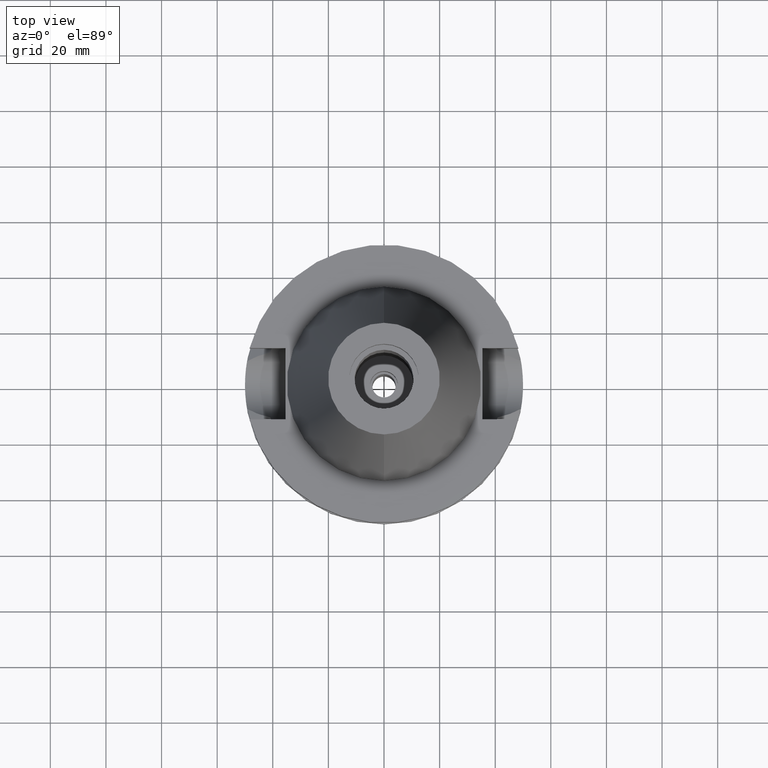
[diagram: clean part render]
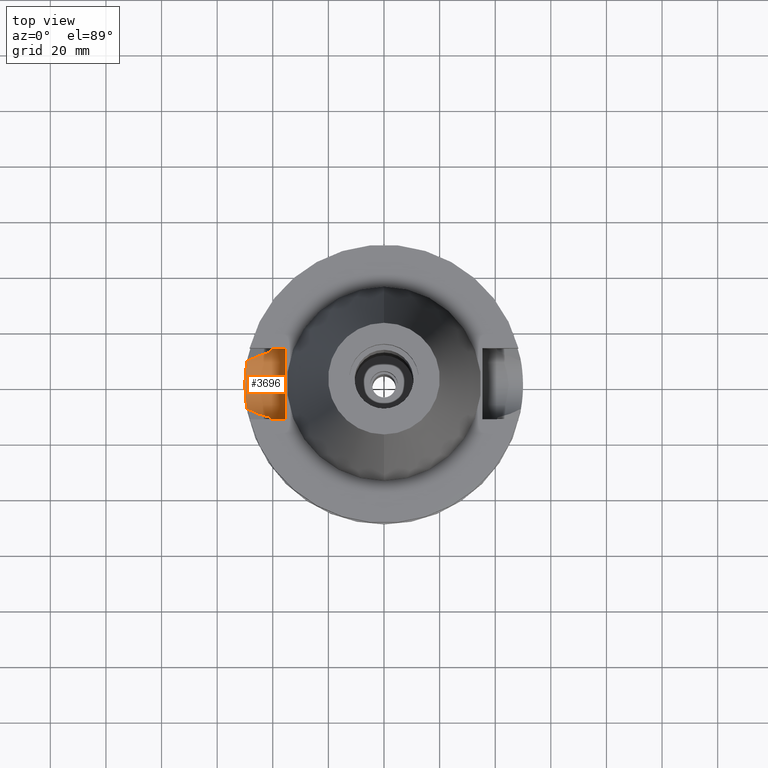
[diagram: same view with one face highlighted and labeled with its STEP entity id]
A machine part, top view. The second image highlights one B-rep face of the part: STEP entity #3696.
In plain terms, the highlighted cylindrical surface (edge-blend (fillet) strip) has radius 12.85 mm, axis along (-1, 0, 0).
Its self-contained STEP definition (entity closure, byte-faithful):
#15 = CARTESIAN_POINT ( 'NONE',  ( -49.26250064874000145, 8.556052234130000045, -30.73730776426999967 ) ) ;
#37 = CARTESIAN_POINT ( 'NONE',  ( -49.48054239204724070, -7.209678475835562317, -31.80600190290413920 ) ) ;
#71 = CARTESIAN_POINT ( 'NONE',  ( -40.51083188481999997, 12.84999999999999964, -21.14999999999999858 ) ) ;
#82 = EDGE_CURVE ( 'NONE', #3013, #531, #466, .T. ) ;
#116 = VERTEX_POINT ( 'NONE', #2906 ) ;
#161 = CARTESIAN_POINT ( 'NONE',  ( -40.51083188481999997, -12.84999999999999964, -21.14999999999999858 ) ) ;
#236 = CARTESIAN_POINT ( 'NONE',  ( -49.99991544254766751, 0.01811622123226228412, -34.00000835048388836 ) ) ;
#250 = CARTESIAN_POINT ( 'NONE',  ( -49.50764152230429715, 6.999347374768817964, -31.92681436916344850 ) ) ;
#267 = CARTESIAN_POINT ( 'NONE',  ( -49.55616206046532568, 6.647337482007169562, -32.14706538255122581 ) ) ;
#268 = CARTESIAN_POINT ( 'NONE',  ( -42.51465299359183092, -11.33892293222904968, -27.26911866689977515 ) ) ;
#305 = CARTESIAN_POINT ( 'NONE',  ( -49.26250064874000145, 8.556052234130000045, -30.73730776426999967 ) ) ;
#318 = CARTESIAN_POINT ( 'NONE',  ( -49.79726298220426628, -4.497969784571679064, -33.18710451702092001 ) ) ;
#320 = CARTESIAN_POINT ( 'NONE',  ( -45.60888228622864915, -10.27858248491968496, -28.86229369423116609 ) ) ;
#340 = CARTESIAN_POINT ( 'NONE',  ( -40.51083188481999997, -12.84999999999999964, -21.14999999999999858 ) ) ;
#360 = CARTESIAN_POINT ( 'NONE',  ( -40.68244087361377126, -12.29668167670598145, -24.88705339701010644 ) ) ;
#377 = CARTESIAN_POINT ( 'NONE',  ( -49.38339985379315067, -7.859960508150862779, -31.35852461822588566 ) ) ;
#379 = CYLINDRICAL_SURFACE ( 'NONE', #1373, 12.85000000000000320 ) ;
#401 = CARTESIAN_POINT ( 'NONE',  ( -40.85052569294000335, -11.72538061688000077, -26.40718074535000426 ) ) ;
#466 = B_SPLINE_CURVE_WITH_KNOTS ( 'NONE', 3,
 ( #3667, #3651, #3684, #1087, #1121, #1371, #2867, #3435, #3399, #3414, #853, #1681, #2001, #3112, #305 ),
 .UNSPECIFIED., .F., .F.,
 ( 4, 2, 2, 1, 1, 1, 2, 2, 4 ),
 ( 0.0000000000000000000, 0.2499999999999952260, 0.3749999999999920619, 0.4374999999999905076, 0.4687499999999908962, 0.4843749999999912847, 0.4921874999999916178, 0.4999999999999918954, 1.000000000000000000 ),
 .UNSPECIFIED. ) ;
#521 = CARTESIAN_POINT ( 'NONE',  ( -49.80470082984147950, -4.415127358189980811, -33.21787507966033814 ) ) ;
#528 = CARTESIAN_POINT ( 'NONE',  ( -40.85052569294000335, 11.72538061688000077, -26.40718074535000426 ) ) ;
#531 = VERTEX_POINT ( 'NONE', #2334 ) ;
#536 = CARTESIAN_POINT ( 'NONE',  ( -49.78958333498074040, 4.582079185021435741, -33.15529795790921241 ) ) ;
#542 = CIRCLE ( 'NONE', #1615, 12.84999999999999964 ) ;
#555 = CARTESIAN_POINT ( 'NONE',  ( -45.36354331325199496, -10.37179322120615410, -28.73609238521905951 ) ) ;
#571 = CARTESIAN_POINT ( 'NONE',  ( -49.60485552032776724, 6.284036338176308689, -32.36641612927145673 ) ) ;
#584 = VERTEX_POINT ( 'NONE', #71 ) ;
#586 = CARTESIAN_POINT ( 'NONE',  ( -45.30471704162525981, -10.39384410570171902, -28.70582959119335342 ) ) ;
#607 = CARTESIAN_POINT ( 'NONE',  ( -46.20185997681837620, -10.04294523431622466, -29.16720314323896446 ) ) ;
#627 = CARTESIAN_POINT ( 'NONE',  ( -49.64407119099760024, -5.957371484550711749, -32.53737940001167317 ) ) ;
#629 = CARTESIAN_POINT ( 'NONE',  ( -35.39999999999999858, 1.497743035356999952E-14, -21.14999999999999858 ) ) ;
#663 = CARTESIAN_POINT ( 'NONE',  ( -49.59474392505249085, -6.354017035844020000, -32.31992421990780429 ) ) ;
#687 = CARTESIAN_POINT ( 'NONE',  ( -49.79067241352542794, -4.570248117203244753, -33.15980675039369885 ) ) ;
#688 = CARTESIAN_POINT ( 'NONE',  ( -40.62482419419445279, -12.48526689986186078, -24.19323376022471805 ) ) ;
#714 = ORIENTED_EDGE ( 'NONE', *, *, #1994, .T. ) ;
#797 = CARTESIAN_POINT ( 'NONE',  ( -49.54873439861842144, 6.702489502985918612, -32.11356988467609597 ) ) ;
#818 = CARTESIAN_POINT ( 'NONE',  ( -49.26250064874000145, -8.556052234130000045, -30.73730776426999967 ) ) ;
#830 = CARTESIAN_POINT ( 'NONE',  ( -49.96617104582079349, 1.860771086949381647, -33.87050983919153424 ) ) ;
#831 = CARTESIAN_POINT ( 'NONE',  ( -45.29121485953691462, -10.39888942761407975, -28.69888333903140420 ) ) ;
#849 = CARTESIAN_POINT ( 'NONE',  ( -49.78664829409730430, 4.613910499820007338, -33.14313281071498807 ) ) ;
#850 = CARTESIAN_POINT ( 'NONE',  ( -45.44563492908307012, -10.34083008589200858, -28.77832213459463517 ) ) ;
#853 = CARTESIAN_POINT ( 'NONE',  ( -45.45340282749541672, 10.33772566401069781, -28.78243799478058307 ) ) ;
#885 = CARTESIAN_POINT ( 'NONE',  ( -40.61156370412487604, -12.52823179351405614, -24.00849701668024849 ) ) ;
#886 = CARTESIAN_POINT ( 'NONE',  ( -40.51083188481999997, 12.84999999999999964, -21.14999999999999858 ) ) ;
#903 = CARTESIAN_POINT ( 'NONE',  ( -49.57456578273922787, -6.508895975357078534, -32.22977460781348924 ) ) ;
#930 = CARTESIAN_POINT ( 'NONE',  ( -40.59187978545034525, 12.59183662339650311, -23.71299885589225198 ) ) ;
#949 = CARTESIAN_POINT ( 'NONE',  ( -40.73816527417218225, 12.11683760439029456, -25.53409260248041690 ) ) ;
#966 = FACE_OUTER_BOUND ( 'NONE', #3056, .T. ) ;
#1006 = ORIENTED_EDGE ( 'NONE', *, *, #82, .T. ) ;
#1022 = VECTOR ( 'NONE', #2787, 1000.000000000000000 ) ;
#1065 = CARTESIAN_POINT ( 'NONE',  ( -49.92917677672049592, -2.675161510860271985, -33.72443551007683737 ) ) ;
#1084 = CARTESIAN_POINT ( 'NONE',  ( -49.37873628789978397, 7.862865052050582726, -31.32131105299423268 ) ) ;
#1087 = CARTESIAN_POINT ( 'NONE',  ( -43.71339813742891778, 10.94495398512616902, -27.88678490020927114 ) ) ;
#1102 = CARTESIAN_POINT ( 'NONE',  ( -49.47536490253651920, 7.224629091412213100, -31.77824543242596533 ) ) ;
#1104 = CARTESIAN_POINT ( 'NONE',  ( -43.99152434236141573, -10.88376623617153527, -28.03024556520306021 ) ) ;
#1121 = CARTESIAN_POINT ( 'NONE',  ( -44.08769718355802780, 10.82370409497792174, -28.07963860682913548 ) ) ;
#1140 = CARTESIAN_POINT ( 'NONE',  ( -49.32363493363114060, 8.204064229992720669, -31.05143429731123206 ) ) ;
#1151 = LINE ( 'NONE', #2872, #1206 ) ;
#1206 = VECTOR ( 'NONE', #1765, 1000.000000000000000 ) ;
#1226 = CARTESIAN_POINT ( 'NONE',  ( -40.60613153986987811, -12.54580241307195543, -23.92958009225430871 ) ) ;
#1227 = CARTESIAN_POINT ( 'NONE',  ( -40.57495769630776294, 12.64634707790012413, -23.43364513698100282 ) ) ;
#1253 = B_SPLINE_CURVE_WITH_KNOTS ( 'NONE', 3,
 ( #401, #2924, #3488, #360, #1490, #3228, #688, #885, #1226, #2649, #3244, #1835, #2986, #340 ),
 .UNSPECIFIED., .F., .F.,
 ( 4, 2, 2, 1, 1, 2, 2, 4 ),
 ( 0.0000000000000000000, 0.2499999999999827915, 0.3749999999999740208, 0.4374999999999704126, 0.4687499999999685252, 0.4843749999999685807, 0.4999999999999686917, 1.000000000000000000 ),
 .UNSPECIFIED. ) ;
#1352 = CARTESIAN_POINT ( 'NONE',  ( -49.99991791987719836, -0.006537551725151027719, -34.00001924552428534 ) ) ;
#1368 = CARTESIAN_POINT ( 'NONE',  ( -49.52321424494235202, 6.888848415447661466, -31.99799020744803357 ) ) ;
#1370 = CARTESIAN_POINT ( 'NONE',  ( -48.07228541771468144, -9.205228402702289259, -30.12762835961801500 ) ) ;
#1371 = CARTESIAN_POINT ( 'NONE',  ( -44.62997897999496644, 10.63804022880221289, -28.35882032510248507 ) ) ;
#1373 = AXIS2_PLACEMENT_3D ( 'NONE', #629, #2405, #1781 ) ;
#1404 = ORIENTED_EDGE ( 'NONE', *, *, #2122, .T. ) ;
#1411 = CARTESIAN_POINT ( 'NONE',  ( -49.86272838369145433, 3.780421414500772403, -33.45811166547272819 ) ) ;
#1429 = B_SPLINE_CURVE_WITH_KNOTS ( 'NONE', 3,
 ( #15, #1140, #1084, #1962, #1102, #250, #1368, #1735, #797, #1697, #1977, #2531, #267, #571, #3395, #3664, #3130, #2844, #2553, #3110, #849, #536, #1996, #3412, #1411, #1718, #830, #2282, #3125, #2865, #2593, #2302, #3449, #236, #1352, #2513, #3648, #1065, #2227, #3375, #1947, #3092, #521, #318, #2612, #2693, #687, #2901, #2964, #3504, #627, #3243, #663, #903, #2633, #2054, #1779, #2361, #3539, #37, #377, #2031 ),
 .UNSPECIFIED., .F., .F.,
 ( 4, 2, 2, 1, 1, 1, 1, 2, 2, 2, 2, 1, 1, 1, 2, 2, 2, 2, 1, 1, 1, 2, 2, 2, 2, 1, 1, 1, 1, 2, 2, 2, 2, 1, 1, 1, 1, 2, 2, 4 ),
 ( 0.0000000000000000000, 0.06250000000000105471, 0.09375000000000120737, 0.1093750000000009576, 0.1171875000000004857, 0.1210937500000005967, 0.1230468750000006523, 0.1240234375000006800, 0.1250000000000006939, 0.1875000000000101585, 0.2187500000000148770, 0.2343750000000175138, 0.2421875000000186517, 0.2460937500000189848, 0.2480468750000190126, 0.2500000000000190403, 0.3750000000000185962, 0.4375000000000183187, 0.4687500000000182632, 0.4843750000000181521, 0.4921875000000181521, 0.4960937500000181521, 0.5000000000000180966, 0.6250000000000176525, 0.6875000000000174305, 0.7187500000000172085, 0.7343750000000173195, 0.7421875000000173195, 0.7460937500000173195, 0.7480468750000175415, 0.7500000000000176525, 0.8125000000000255351, 0.8437500000000297540, 0.8593750000000319744, 0.8671875000000330846, 0.8710937500000338618, 0.8730468750000344169, 0.8740234375000346390, 0.8750000000000348610, 1.000000000000000000 ),
 .UNSPECIFIED. ) ;
#1490 = CARTESIAN_POINT ( 'NONE',  ( -40.66327158113702467, -12.35978760560729306, -24.67233268225292875 ) ) ;
#1491 = CARTESIAN_POINT ( 'NONE',  ( -40.51818681660353860, 12.82722334132505182, -22.03684727485040540 ) ) ;
#1497 = B_SPLINE_CURVE_WITH_KNOTS ( 'NONE', 3,
 ( #886, #1963, #1491, #1756, #2118, #2363, #1227, #2945, #930, #1516, #1817, #3559, #949, #3267 ),
 .UNSPECIFIED., .F., .F.,
 ( 4, 2, 2, 1, 1, 2, 2, 4 ),
 ( 0.0000000000000000000, 0.2500000000000072164, 0.3750000000000108247, 0.4375000000000137113, 0.4687500000000149325, 0.4843750000000148215, 0.5000000000000146549, 1.000000000000000000 ),
 .UNSPECIFIED. ) ;
#1516 = CARTESIAN_POINT ( 'NONE',  ( -40.59544233053302520, 12.58034074060883967, -23.76884316746764370 ) ) ;
#1615 = AXIS2_PLACEMENT_3D ( 'NONE', #1726, #2625, #3439 ) ;
#1681 = CARTESIAN_POINT ( 'NONE',  ( -45.47324198798429506, 10.33018538438669864, -28.79264169622470959 ) ) ;
#1697 = CARTESIAN_POINT ( 'NONE',  ( -49.55284341498607859, 6.672031590170570681, -32.13210701967179261 ) ) ;
#1718 = CARTESIAN_POINT ( 'NONE',  ( -49.91456184022878517, 3.009912612083587735, -33.66672019722430775 ) ) ;
#1726 = CARTESIAN_POINT ( 'NONE',  ( -35.39999999999999858, 1.497743035356999952E-14, -21.14999999999999858 ) ) ;
#1735 = CARTESIAN_POINT ( 'NONE',  ( -49.54039264367310125, 6.763925163577721555, -32.07587820864714701 ) ) ;
#1756 = CARTESIAN_POINT ( 'NONE',  ( -40.54025161195416160, 12.75732247067835701, -22.70680363675425184 ) ) ;
#1765 = DIRECTION ( 'NONE',  ( 1.000000000000000000, 3.301887120261000215E-14, -2.363456043975999886E-14 ) ) ;
#1779 = CARTESIAN_POINT ( 'NONE',  ( -49.55690416619891892, -6.641812944415575792, -32.15040284411335847 ) ) ;
#1781 = DIRECTION ( 'NONE',  ( 0.0000000000000000000, 0.0000000000000000000, -1.000000000000000000 ) ) ;
#1787 = VERTEX_POINT ( 'NONE', #161 ) ;
#1795 = CARTESIAN_POINT ( 'NONE',  ( -49.26250064874000145, -8.556052234130000045, -30.73730776426999967 ) ) ;
#1817 = CARTESIAN_POINT ( 'NONE',  ( -40.59736410791904859, 12.57413583718570038, -23.79845734577972749 ) ) ;
#1835 = CARTESIAN_POINT ( 'NONE',  ( -40.54024919018342388, -12.75863389447157381, -22.93144383363605954 ) ) ;
#1870 = B_SPLINE_CURVE_WITH_KNOTS ( 'NONE', 3,
 ( #818, #3432, #1370, #3666, #2614, #607, #2830, #320, #850, #555, #3163, #586, #831, #1104, #268, #1999 ),
 .UNSPECIFIED., .F., .F.,
 ( 4, 2, 2, 1, 1, 1, 1, 2, 2, 4 ),
 ( 0.0000000000000000000, 0.2499999999999790168, 0.3749999999999687472, 0.4374999999999629741, 0.4687499999999591438, 0.4843749999999561462, 0.4921874999999555911, 0.4960937499999553135, 0.4999999999999550360, 1.000000000000000000 ),
 .UNSPECIFIED. ) ;
#1888 = VERTEX_POINT ( 'NONE', #3616 ) ;
#1947 = CARTESIAN_POINT ( 'NONE',  ( -49.84684500841170518, -3.916667036068517405, -33.39142683419862578 ) ) ;
#1962 = CARTESIAN_POINT ( 'NONE',  ( -49.45233892336904802, 7.380538401923489644, -31.67091164009148940 ) ) ;
#1963 = CARTESIAN_POINT ( 'NONE',  ( -40.51083188481999997, 12.85000000000001918, -21.59153118651606462 ) ) ;
#1977 = CARTESIAN_POINT ( 'NONE',  ( -49.55459116604973246, 6.659034255472970898, -32.13998582162638229 ) ) ;
#1994 = EDGE_CURVE ( 'NONE', #531, #2069, #1429, .T. ) ;
#1996 = CARTESIAN_POINT ( 'NONE',  ( -49.79153171028954006, 4.560873024743771431, -33.16337030013435339 ) ) ;
#1999 = CARTESIAN_POINT ( 'NONE',  ( -40.85052569294000335, -11.72538061688000077, -26.40718074535000426 ) ) ;
#2001 = CARTESIAN_POINT ( 'NONE',  ( -46.91666062430633133, 9.779677586540874046, -29.53501672953683510 ) ) ;
#2031 = CARTESIAN_POINT ( 'NONE',  ( -49.26250064874000145, -8.556052234130000045, -30.73730776426999967 ) ) ;
#2054 = CARTESIAN_POINT ( 'NONE',  ( -49.55913070989809199, -6.625190947505543271, -32.16043313553403493 ) ) ;
#2069 = VERTEX_POINT ( 'NONE', #1795 ) ;
#2118 = CARTESIAN_POINT ( 'NONE',  ( -40.54944527668359910, 12.72806992640795976, -22.93044913861958634 ) ) ;
#2122 = EDGE_CURVE ( 'NONE', #1888, #1787, #1253, .T. ) ;
#2219 = LINE ( 'NONE', #3420, #1022 ) ;
#2227 = CARTESIAN_POINT ( 'NONE',  ( -49.90733636590470468, -3.057819791134848142, -33.63716536761770470 ) ) ;
#2282 = CARTESIAN_POINT ( 'NONE',  ( -49.97901728448245962, 1.478784521663389473, -33.92030068184770641 ) ) ;
#2302 = CARTESIAN_POINT ( 'NONE',  ( -49.99976427570129545, 0.1346550322231768737, -33.99944266757042755 ) ) ;
#2334 = CARTESIAN_POINT ( 'NONE',  ( -49.26250064874000145, 8.556052234130000045, -30.73730776426999967 ) ) ;
#2361 = CARTESIAN_POINT ( 'NONE',  ( -49.55541775294296514, -6.652895017515217724, -32.14370409858773314 ) ) ;
#2363 = CARTESIAN_POINT ( 'NONE',  ( -40.56599387319658234, 12.67510252611359611, -23.26591392764322563 ) ) ;
#2405 = DIRECTION ( 'NONE',  ( -1.000000000000000000, 0.0000000000000000000, 0.0000000000000000000 ) ) ;
#2502 = ORIENTED_EDGE ( 'NONE', *, *, #3020, .F. ) ;
#2513 = CARTESIAN_POINT ( 'NONE',  ( -49.99946305997390539, -0.7715022179525621304, -33.99825010080718357 ) ) ;
#2531 = CARTESIAN_POINT ( 'NONE',  ( -49.55575338765856941, 6.650381862256111276, -32.14522381133217266 ) ) ;
#2553 = CARTESIAN_POINT ( 'NONE',  ( -49.76549158982277987, 4.837787271762218566, -33.05517441525054778 ) ) ;
#2593 = CARTESIAN_POINT ( 'NONE',  ( -49.99914759308950352, 0.2981871575697072063, -33.99713586476475058 ) ) ;
#2612 = CARTESIAN_POINT ( 'NONE',  ( -49.79403732953442585, -4.533449701795442266, -33.17374706984067956 ) ) ;
#2614 = CARTESIAN_POINT ( 'NONE',  ( -46.73375635853939514, -9.820607390559599637, -29.44055796422835414 ) ) ;
#2625 = DIRECTION ( 'NONE',  ( 1.000000000000000000, 0.0000000000000000000, 0.0000000000000000000 ) ) ;
#2633 = CARTESIAN_POINT ( 'NONE',  ( -49.56430444523619627, -6.586414376798028769, -32.18371255701226374 ) ) ;
#2649 = CARTESIAN_POINT ( 'NONE',  ( -40.60256585323713807, -12.55733039765425296, -23.87702712880657430 ) ) ;
#2693 = CARTESIAN_POINT ( 'NONE',  ( -49.79187844915844607, -4.557097522358969144, -33.16480428346299902 ) ) ;
#2787 = DIRECTION ( 'NONE',  ( -1.000000000000000000, 3.440913946376999995E-14, 0.0000000000000000000 ) ) ;
#2830 = CARTESIAN_POINT ( 'NONE',  ( -45.93163350245353627, -10.15282464567302689, -29.02828291349679901 ) ) ;
#2832 = ORIENTED_EDGE ( 'NONE', *, *, #3250, .T. ) ;
#2844 = CARTESIAN_POINT ( 'NONE',  ( -49.75270328099096417, 4.966869613680869655, -33.00164743349787955 ) ) ;
#2865 = CARTESIAN_POINT ( 'NONE',  ( -49.99648464306511642, 0.6265222743399756489, -33.98712896362437164 ) ) ;
#2867 = CARTESIAN_POINT ( 'NONE',  ( -44.89632818502427369, 10.54426000336497893, -28.49588781203098975 ) ) ;
#2872 = CARTESIAN_POINT ( 'NONE',  ( -40.51083188481999997, 12.84999999999999964, -21.14999999999999858 ) ) ;
#2901 = CARTESIAN_POINT ( 'NONE',  ( -49.75881049649969867, -4.916384288715675233, -33.02774073459622883 ) ) ;
#2906 = CARTESIAN_POINT ( 'NONE',  ( -35.39999999999999858, 12.84999999999999964, -21.14999999999999858 ) ) ;
#2914 = CARTESIAN_POINT ( 'NONE',  ( -35.39999999999999858, -12.84999999999999964, -21.14999999999999858 ) ) ;
#2924 = CARTESIAN_POINT ( 'NONE',  ( -40.79434512272909785, -11.92111036773516553, -25.97063387013633218 ) ) ;
#2945 = CARTESIAN_POINT ( 'NONE',  ( -40.58662215843322940, 12.60879279855876689, -23.62921822475151146 ) ) ;
#2964 = CARTESIAN_POINT ( 'NONE',  ( -49.72371407452322245, -5.259692327482476948, -32.88064062391482167 ) ) ;
#2986 = CARTESIAN_POINT ( 'NONE',  ( -40.51083188481999997, -12.84999999999998366, -22.03305700386269095 ) ) ;
#3013 = VERTEX_POINT ( 'NONE', #528 ) ;
#3020 = EDGE_CURVE ( 'NONE', #3286, #1787, #2219, .T. ) ;
#3049 = ORIENTED_EDGE ( 'NONE', *, *, #3567, .T. ) ;
#3056 = EDGE_LOOP ( 'NONE', ( #1404, #2502, #2832, #3177, #3329, #1006, #714, #3049 ) ) ;
#3092 = CARTESIAN_POINT ( 'NONE',  ( -49.81922182407978994, -4.249229465674448925, -33.27783150483166708 ) ) ;
#3110 = CARTESIAN_POINT ( 'NONE',  ( -49.77971251992781276, 4.688336494211126748, -33.11434920849495711 ) ) ;
#3112 = CARTESIAN_POINT ( 'NONE',  ( -48.17234469770528449, 9.181655613640703706, -30.17899720153970478 ) ) ;
#3125 = CARTESIAN_POINT ( 'NONE',  ( -49.99175139767147868, 0.9099257520618805328, -33.96915581921494010 ) ) ;
#3130 = CARTESIAN_POINT ( 'NONE',  ( -49.72632807643353914, 5.226216966766903838, -32.89072054029269765 ) ) ;
#3163 = CARTESIAN_POINT ( 'NONE',  ( -45.32826091991192641, -10.38502840332315991, -28.71794167306770973 ) ) ;
#3177 = ORIENTED_EDGE ( 'NONE', *, *, #3223, .F. ) ;
#3223 = EDGE_CURVE ( 'NONE', #584, #116, #1151, .T. ) ;
#3228 = CARTESIAN_POINT ( 'NONE',  ( -40.63719394021055109, -12.44501252812421832, -24.35255093166037099 ) ) ;
#3243 = CARTESIAN_POINT ( 'NONE',  ( -49.61144884813343481, -6.221598462936697160, -32.39385426431571346 ) ) ;
#3244 = CARTESIAN_POINT ( 'NONE',  ( -40.60092238249552565, -12.56264134811939037, -23.85247231211802443 ) ) ;
#3250 = EDGE_CURVE ( 'NONE', #3286, #116, #542, .T. ) ;
#3267 = CARTESIAN_POINT ( 'NONE',  ( -40.85052569294000335, 11.72538061688000077, -26.40718074535000426 ) ) ;
#3286 = VERTEX_POINT ( 'NONE', #2914 ) ;
#3329 = ORIENTED_EDGE ( 'NONE', *, *, #3683, .T. ) ;
#3375 = CARTESIAN_POINT ( 'NONE',  ( -49.86808978787674107, -3.630590270150853005, -33.47804037503964025 ) ) ;
#3395 = CARTESIAN_POINT ( 'NONE',  ( -49.64854071993825357, 5.927764153902921329, -32.55772659464668095 ) ) ;
#3399 = CARTESIAN_POINT ( 'NONE',  ( -45.34776473343364245, 10.37767310406514021, -28.72810515886630967 ) ) ;
#3412 = CARTESIAN_POINT ( 'NONE',  ( -49.79238540805294377, 4.551552570718878421, -33.16690600825058510 ) ) ;
#3414 = CARTESIAN_POINT ( 'NONE',  ( -45.41120748603557900, 10.35371344535751525, -28.76073580805027774 ) ) ;
#3420 = CARTESIAN_POINT ( 'NONE',  ( -35.39999999999999858, -12.84999999999999964, -21.14999999999999858 ) ) ;
#3432 = CARTESIAN_POINT ( 'NONE',  ( -48.69021054525040881, -8.884470037529284880, -30.44421611126483995 ) ) ;
#3435 = CARTESIAN_POINT ( 'NONE',  ( -45.19868346114402868, 10.43342142355090907, -28.65142459957056786 ) ) ;
#3439 = DIRECTION ( 'NONE',  ( 0.0000000000000000000, -1.000000000000000000, 0.0000000000000000000 ) ) ;
#3449 = CARTESIAN_POINT ( 'NONE',  ( -49.99987539844914153, 0.06471233005496213053, -33.99985817506623675 ) ) ;
#3488 = CARTESIAN_POINT ( 'NONE',  ( -40.74530134662118286, -12.08735857078309195, -25.53452462448135662 ) ) ;
#3504 = CARTESIAN_POINT ( 'NONE',  ( -49.66476941517675670, -5.782036372790098966, -32.62728206460645453 ) ) ;
#3539 = CARTESIAN_POINT ( 'NONE',  ( -49.55450159062300486, -6.659714905577689414, -32.13957334196845039 ) ) ;
#3559 = CARTESIAN_POINT ( 'NONE',  ( -40.65435373193302837, 12.39003581045369806, -24.66356197803479589 ) ) ;
#3567 = EDGE_CURVE ( 'NONE', #2069, #1888, #1870, .T. ) ;
#3616 = CARTESIAN_POINT ( 'NONE',  ( -40.85052569294000335, -11.72538061688000077, -26.40718074535000426 ) ) ;
#3648 = CARTESIAN_POINT ( 'NONE',  ( -49.98172608555935881, -1.530333886428157708, -33.93210656430024841 ) ) ;
#3651 = CARTESIAN_POINT ( 'NONE',  ( -41.72690227024303056, 11.52186105271225713, -26.86110167149795558 ) ) ;
#3664 = CARTESIAN_POINT ( 'NONE',  ( -49.70767982420351672, 5.400694699248996145, -32.81160474575136732 ) ) ;
#3666 = CARTESIAN_POINT ( 'NONE',  ( -47.07694519034185276, -9.668944783465764914, -29.61681120621119234 ) ) ;
#3667 = CARTESIAN_POINT ( 'NONE',  ( -40.85052569294000335, 11.72538061688000077, -26.40718074535000426 ) ) ;
#3683 = EDGE_CURVE ( 'NONE', #584, #3013, #1497, .T. ) ;
#3684 = CARTESIAN_POINT ( 'NONE',  ( -42.55216745352812069, 11.29890983468336252, -27.28777570953529974 ) ) ;
#3696 = ADVANCED_FACE ( 'NONE', ( #966 ), #379, .F. ) ;